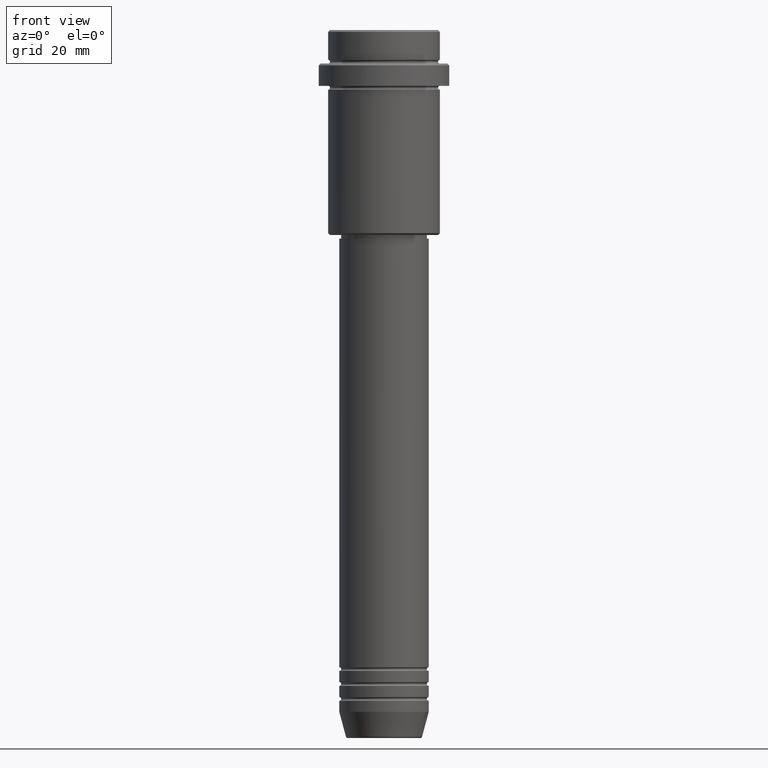
[diagram: clean part render]
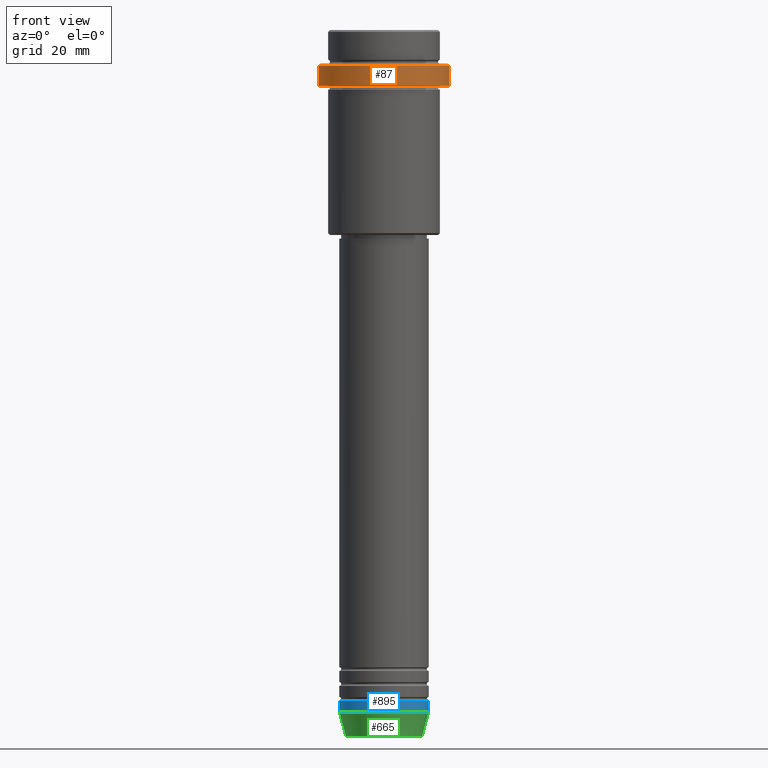
[diagram: same view with three faces highlighted in distinct colors, each labeled with its STEP entity id]
A machine part, front view with three faces highlighted in distinct colors.
Their STEP definitions:

[orange] entity #87 — the highlighted cylindrical surface (partial cylindrical patch) has radius 17.5 mm, axis along (-0, -0, 1).
#9 = CARTESIAN_POINT ( 'NONE',  ( -17.50000000000000000, 2.143131898507868248E-15, -15.00000000000000178 ) ) ;
#16 = AXIS2_PLACEMENT_3D ( 'NONE', #1314, #338, #1103 ) ;
#27 = CARTESIAN_POINT ( 'NONE',  ( 0.000000000000000000, 0.000000000000000000, -9.500000000000001776 ) ) ;
#82 = VERTEX_POINT ( 'NONE', #1208 ) ;
#87 = ADVANCED_FACE ( 'NONE', ( #134 ), #448, .T. ) ;
#134 = FACE_OUTER_BOUND ( 'NONE', #183, .T. ) ;
#156 = VECTOR ( 'NONE', #708, 1000.000000000000000 ) ;
#168 = EDGE_CURVE ( 'NONE', #255, #251, #714, .T. ) ;
#183 = EDGE_LOOP ( 'NONE', ( #1374, #943, #1203, #1249 ) ) ;
#251 = VERTEX_POINT ( 'NONE', #847 ) ;
#255 = VERTEX_POINT ( 'NONE', #9 ) ;
#277 = AXIS2_PLACEMENT_3D ( 'NONE', #871, #439, #867 ) ;
#338 = DIRECTION ( 'NONE',  ( -0.000000000000000000, -0.000000000000000000, 1.000000000000000000 ) ) ;
#343 = DIRECTION ( 'NONE',  ( 0.000000000000000000, 0.000000000000000000, -1.000000000000000000 ) ) ;
#439 = DIRECTION ( 'NONE',  ( -0.000000000000000000, -0.000000000000000000, 1.000000000000000000 ) ) ;
#442 = VECTOR ( 'NONE', #1193, 1000.000000000000000 ) ;
#448 = CYLINDRICAL_SURFACE ( 'NONE', #16, 17.50000000000000000 ) ;
#529 = VERTEX_POINT ( 'NONE', #781 ) ;
#649 = CARTESIAN_POINT ( 'NONE',  ( 17.50000000000000000, 0.000000000000000000, 0.000000000000000000 ) ) ;
#708 = DIRECTION ( 'NONE',  ( -0.000000000000000000, -0.000000000000000000, 1.000000000000000000 ) ) ;
#714 = LINE ( 'NONE', #722, #156 ) ;
#722 = CARTESIAN_POINT ( 'NONE',  ( -17.50000000000000000, 2.143131898507868248E-15, 0.000000000000000000 ) ) ;
#763 = EDGE_CURVE ( 'NONE', #255, #82, #1278, .T. ) ;
#772 = DIRECTION ( 'NONE',  ( 1.000000000000000000, 0.000000000000000000, 0.000000000000000000 ) ) ;
#781 = CARTESIAN_POINT ( 'NONE',  ( 17.50000000000000000, 0.000000000000000000, -9.500000000000001776 ) ) ;
#830 = EDGE_CURVE ( 'NONE', #529, #251, #1232, .T. ) ;
#847 = CARTESIAN_POINT ( 'NONE',  ( -17.50000000000000000, 2.143131898507868248E-15, -9.500000000000001776 ) ) ;
#867 = DIRECTION ( 'NONE',  ( 1.000000000000000000, 0.000000000000000000, 0.000000000000000000 ) ) ;
#871 = CARTESIAN_POINT ( 'NONE',  ( 0.000000000000000000, 0.000000000000000000, -15.00000000000000178 ) ) ;
#906 = AXIS2_PLACEMENT_3D ( 'NONE', #27, #343, #772 ) ;
#943 = ORIENTED_EDGE ( 'NONE', *, *, #763, .T. ) ;
#1018 = LINE ( 'NONE', #649, #442 ) ;
#1103 = DIRECTION ( 'NONE',  ( 1.000000000000000000, 0.000000000000000000, 0.000000000000000000 ) ) ;
#1105 = EDGE_CURVE ( 'NONE', #82, #529, #1018, .T. ) ;
#1193 = DIRECTION ( 'NONE',  ( -0.000000000000000000, -0.000000000000000000, 1.000000000000000000 ) ) ;
#1203 = ORIENTED_EDGE ( 'NONE', *, *, #1105, .T. ) ;
#1208 = CARTESIAN_POINT ( 'NONE',  ( 17.50000000000000000, 0.000000000000000000, -15.00000000000000178 ) ) ;
#1232 = CIRCLE ( 'NONE', #906, 17.50000000000000000 ) ;
#1249 = ORIENTED_EDGE ( 'NONE', *, *, #830, .T. ) ;
#1278 = CIRCLE ( 'NONE', #277, 17.50000000000000000 ) ;
#1314 = CARTESIAN_POINT ( 'NONE',  ( 0.000000000000000000, 0.000000000000000000, 0.000000000000000000 ) ) ;
#1374 = ORIENTED_EDGE ( 'NONE', *, *, #168, .F. ) ;

[blue] entity #895 — the highlighted cylindrical surface (partial cylindrical patch) has radius 12 mm, axis along (-0, -0, 1).
#75 = VERTEX_POINT ( 'NONE', #116 ) ;
#99 = DIRECTION ( 'NONE',  ( -0.000000000000000000, -0.000000000000000000, 1.000000000000000000 ) ) ;
#116 = CARTESIAN_POINT ( 'NONE',  ( -12.00000000000000000, 1.469576158976823947E-15, -183.0000000000000000 ) ) ;
#128 = DIRECTION ( 'NONE',  ( 1.000000000000000000, 0.000000000000000000, 0.000000000000000000 ) ) ;
#170 = CARTESIAN_POINT ( 'NONE',  ( -12.00000000000000000, 1.469576158976823947E-15, 0.000000000000000000 ) ) ;
#205 = CARTESIAN_POINT ( 'NONE',  ( -12.00000000000000000, 1.469576158976823947E-15, -180.0000000000000000 ) ) ;
#231 = ORIENTED_EDGE ( 'NONE', *, *, #292, .F. ) ;
#289 = EDGE_CURVE ( 'NONE', #432, #759, #1394, .T. ) ;
#292 = EDGE_CURVE ( 'NONE', #1123, #759, #666, .T. ) ;
#312 = DIRECTION ( 'NONE',  ( -0.000000000000000000, -0.000000000000000000, 1.000000000000000000 ) ) ;
#346 = VECTOR ( 'NONE', #614, 1000.000000000000000 ) ;
#356 = CARTESIAN_POINT ( 'NONE',  ( 0.000000000000000000, 0.000000000000000000, 0.000000000000000000 ) ) ;
#358 = ORIENTED_EDGE ( 'NONE', *, *, #1040, .F. ) ;
#417 = DIRECTION ( 'NONE',  ( 1.000000000000000000, 0.000000000000000000, 0.000000000000000000 ) ) ;
#432 = VERTEX_POINT ( 'NONE', #1411 ) ;
#447 = CARTESIAN_POINT ( 'NONE',  ( 12.00000000000000000, 0.000000000000000000, -180.0000000000000000 ) ) ;
#484 = AXIS2_PLACEMENT_3D ( 'NONE', #356, #1207, #128 ) ;
#528 = DIRECTION ( 'NONE',  ( -0.000000000000000000, -0.000000000000000000, 1.000000000000000000 ) ) ;
#539 = DIRECTION ( 'NONE',  ( 1.000000000000000000, 0.000000000000000000, 0.000000000000000000 ) ) ;
#569 = FACE_OUTER_BOUND ( 'NONE', #821, .T. ) ;
#614 = DIRECTION ( 'NONE',  ( -0.000000000000000000, -0.000000000000000000, 1.000000000000000000 ) ) ;
#666 = CIRCLE ( 'NONE', #1016, 12.00000000000000000 ) ;
#759 = VERTEX_POINT ( 'NONE', #447 ) ;
#787 = EDGE_CURVE ( 'NONE', #75, #432, #904, .T. ) ;
#821 = EDGE_LOOP ( 'NONE', ( #358, #1060, #1028, #231 ) ) ;
#895 = ADVANCED_FACE ( 'NONE', ( #569 ), #1226, .T. ) ;
#904 = CIRCLE ( 'NONE', #1097, 12.00000000000000000 ) ;
#1016 = AXIS2_PLACEMENT_3D ( 'NONE', #1202, #528, #539 ) ;
#1028 = ORIENTED_EDGE ( 'NONE', *, *, #289, .T. ) ;
#1040 = EDGE_CURVE ( 'NONE', #75, #1123, #1155, .T. ) ;
#1060 = ORIENTED_EDGE ( 'NONE', *, *, #787, .T. ) ;
#1097 = AXIS2_PLACEMENT_3D ( 'NONE', #1399, #312, #417 ) ;
#1123 = VERTEX_POINT ( 'NONE', #205 ) ;
#1129 = VECTOR ( 'NONE', #99, 1000.000000000000000 ) ;
#1155 = LINE ( 'NONE', #170, #346 ) ;
#1202 = CARTESIAN_POINT ( 'NONE',  ( 0.000000000000000000, 0.000000000000000000, -180.0000000000000000 ) ) ;
#1207 = DIRECTION ( 'NONE',  ( -0.000000000000000000, -0.000000000000000000, 1.000000000000000000 ) ) ;
#1226 = CYLINDRICAL_SURFACE ( 'NONE', #484, 12.00000000000000000 ) ;
#1394 = LINE ( 'NONE', #1409, #1129 ) ;
#1399 = CARTESIAN_POINT ( 'NONE',  ( 0.000000000000000000, 0.000000000000000000, -183.0000000000000000 ) ) ;
#1409 = CARTESIAN_POINT ( 'NONE',  ( 12.00000000000000000, 0.000000000000000000, 0.000000000000000000 ) ) ;
#1411 = CARTESIAN_POINT ( 'NONE',  ( 12.00000000000000000, 0.000000000000000000, -183.0000000000000000 ) ) ;

[green] entity #665 — the highlighted conical surface has half-angle 15 deg.
#25 = EDGE_CURVE ( 'NONE', #1403, #432, #1173, .T. ) ;
#59 = DIRECTION ( 'NONE',  ( 1.000000000000000000, 0.000000000000000000, 0.000000000000000000 ) ) ;
#75 = VERTEX_POINT ( 'NONE', #116 ) ;
#76 = CARTESIAN_POINT ( 'NONE',  ( -10.22365507213719127, 1.360806402472382744E-15, -189.6294095225512422 ) ) ;
#116 = CARTESIAN_POINT ( 'NONE',  ( -12.00000000000000000, 1.469576158976823947E-15, -183.0000000000000000 ) ) ;
#214 = CARTESIAN_POINT ( 'NONE',  ( 12.00000000000000000, 0.000000000000000000, -183.0000000000000000 ) ) ;
#312 = DIRECTION ( 'NONE',  ( -0.000000000000000000, -0.000000000000000000, 1.000000000000000000 ) ) ;
#391 = CARTESIAN_POINT ( 'NONE',  ( 0.000000000000000000, 0.000000000000000000, -189.6294095225512422 ) ) ;
#400 = DIRECTION ( 'NONE',  ( 1.000000000000000000, 0.000000000000000000, 0.000000000000000000 ) ) ;
#413 = CIRCLE ( 'NONE', #591, 10.22365507213719127 ) ;
#417 = DIRECTION ( 'NONE',  ( 1.000000000000000000, 0.000000000000000000, 0.000000000000000000 ) ) ;
#429 = ORIENTED_EDGE ( 'NONE', *, *, #787, .F. ) ;
#432 = VERTEX_POINT ( 'NONE', #1411 ) ;
#438 = AXIS2_PLACEMENT_3D ( 'NONE', #934, #1370, #400 ) ;
#450 = ORIENTED_EDGE ( 'NONE', *, *, #1251, .F. ) ;
#576 = VECTOR ( 'NONE', #1330, 1000.000000000000000 ) ;
#591 = AXIS2_PLACEMENT_3D ( 'NONE', #391, #1345, #59 ) ;
#665 = ADVANCED_FACE ( 'NONE', ( #1049 ), #1389, .T. ) ;
#695 = LINE ( 'NONE', #1238, #576 ) ;
#757 = DIRECTION ( 'NONE',  ( 0.2588190451025213501, 0.000000000000000000, 0.9659258262890680902 ) ) ;
#782 = CARTESIAN_POINT ( 'NONE',  ( 10.22365507213719127, 0.000000000000000000, -189.6294095225512422 ) ) ;
#787 = EDGE_CURVE ( 'NONE', #75, #432, #904, .T. ) ;
#904 = CIRCLE ( 'NONE', #1097, 12.00000000000000000 ) ;
#934 = CARTESIAN_POINT ( 'NONE',  ( 0.000000000000000000, 0.000000000000000000, -183.0000000000000000 ) ) ;
#997 = EDGE_CURVE ( 'NONE', #1013, #1403, #413, .T. ) ;
#1013 = VERTEX_POINT ( 'NONE', #76 ) ;
#1043 = ORIENTED_EDGE ( 'NONE', *, *, #25, .T. ) ;
#1049 = FACE_OUTER_BOUND ( 'NONE', #1176, .T. ) ;
#1094 = VECTOR ( 'NONE', #757, 1000.000000000000000 ) ;
#1097 = AXIS2_PLACEMENT_3D ( 'NONE', #1399, #312, #417 ) ;
#1173 = LINE ( 'NONE', #214, #1094 ) ;
#1176 = EDGE_LOOP ( 'NONE', ( #450, #1261, #1043, #429 ) ) ;
#1238 = CARTESIAN_POINT ( 'NONE',  ( -12.00000000000000000, 1.469576158976823947E-15, -183.0000000000000000 ) ) ;
#1251 = EDGE_CURVE ( 'NONE', #1013, #75, #695, .T. ) ;
#1261 = ORIENTED_EDGE ( 'NONE', *, *, #997, .T. ) ;
#1330 = DIRECTION ( 'NONE',  ( -0.2588190451025213501, 3.169619151431772337E-17, 0.9659258262890680902 ) ) ;
#1345 = DIRECTION ( 'NONE',  ( -0.000000000000000000, -0.000000000000000000, 1.000000000000000000 ) ) ;
#1370 = DIRECTION ( 'NONE',  ( -0.000000000000000000, -0.000000000000000000, 1.000000000000000000 ) ) ;
#1389 = CONICAL_SURFACE ( 'NONE', #438, 12.00000000000000000, 0.2617993877991500740 ) ;
#1399 = CARTESIAN_POINT ( 'NONE',  ( 0.000000000000000000, 0.000000000000000000, -183.0000000000000000 ) ) ;
#1403 = VERTEX_POINT ( 'NONE', #782 ) ;
#1411 = CARTESIAN_POINT ( 'NONE',  ( 12.00000000000000000, 0.000000000000000000, -183.0000000000000000 ) ) ;